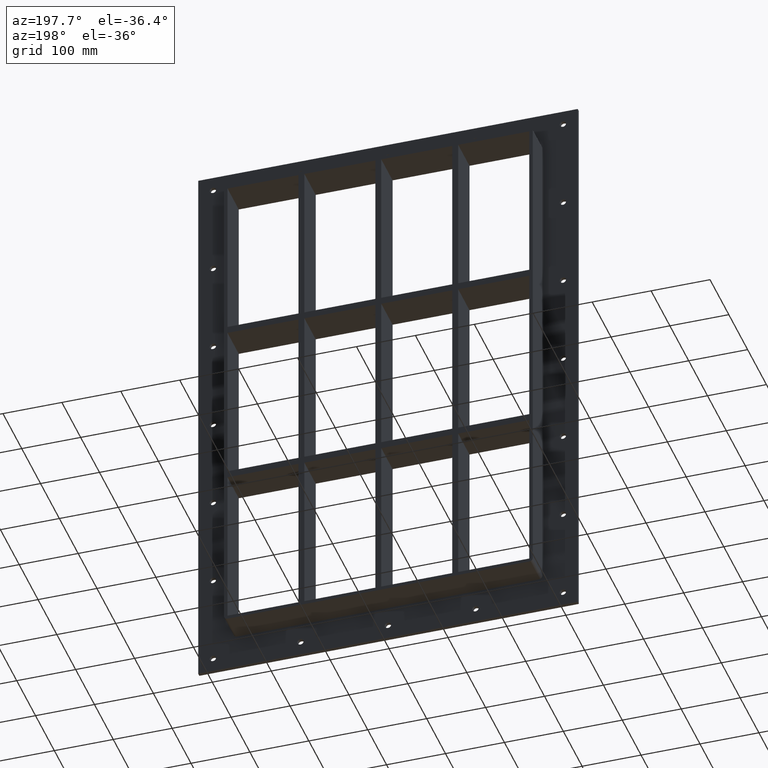
[diagram: clean part render]
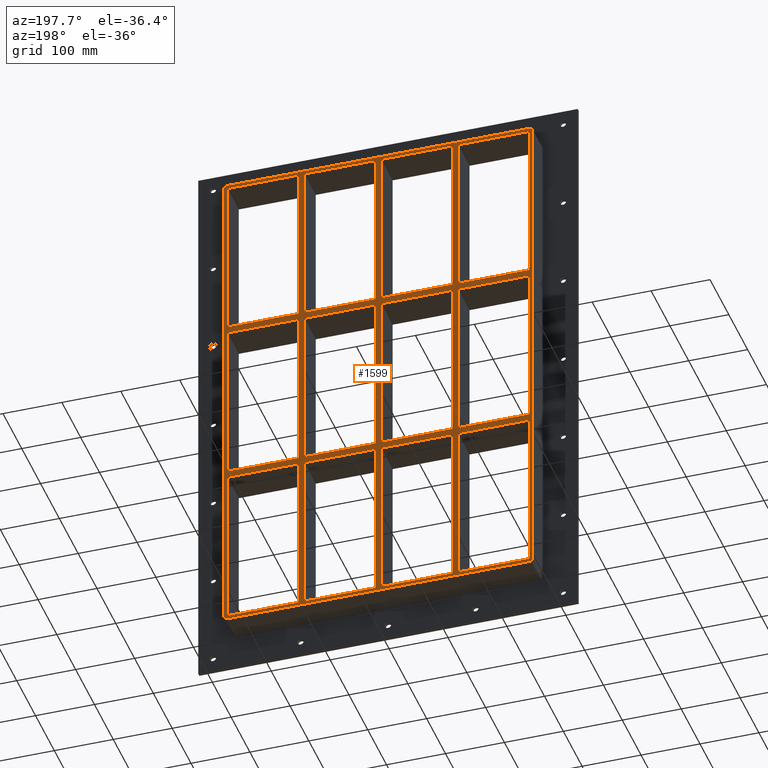
[diagram: same view with one face highlighted and labeled with its STEP entity id]
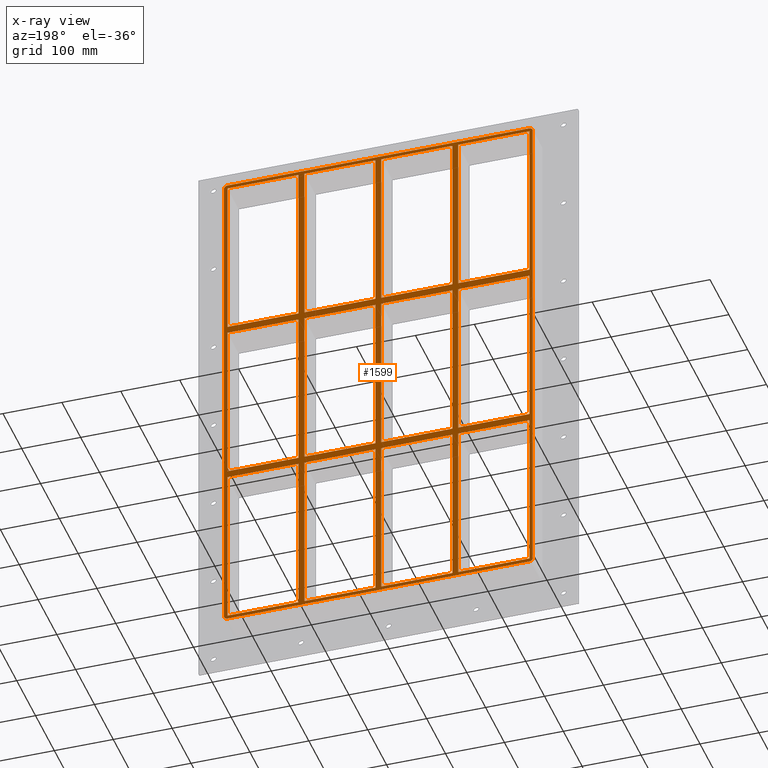
[diagram: x-ray of the same camera — body ghosted, the highlighted face saturated]
A machine part, auxiliary view. The second image highlights one B-rep face of the part: STEP entity #1599.
The next image is the same camera in x-ray: the body ghosted, the highlighted face saturated — about 0% of this face is hidden behind the body in this view.
In plain terms, the highlighted planar face has unit normal (0, 1, 0).
Its self-contained STEP definition (entity closure, byte-faithful):
#635=CARTESIAN_POINT('',(-135.50000000000213,57.0,138.99999999998983));
#636=VERTEX_POINT('',#635);
#651=CARTESIAN_POINT('',(-256.00000000000045,57.0,138.99999999998983));
#652=VERTEX_POINT('',#651);
#659=CARTESIAN_POINT('',(-135.5000000000021,57.0,138.9999999999898));
#660=DIRECTION('',(-1.0,0.0,0.0));
#661=VECTOR('',#660,120.49999999999835);
#662=LINE('',#659,#661);
#663=EDGE_CURVE('',#636,#652,#662,.T.);
#675=CARTESIAN_POINT('',(-5.000000000002132,57.0,138.99999999998983));
#676=VERTEX_POINT('',#675);
#691=CARTESIAN_POINT('',(-125.49999999999272,57.0,138.99999999998983));
#692=VERTEX_POINT('',#691);
#699=CARTESIAN_POINT('',(-5.00000000000216,57.0,138.9999999999898));
#700=DIRECTION('',(-1.0,0.0,0.0));
#701=VECTOR('',#700,120.49999999999056);
#702=LINE('',#699,#701);
#703=EDGE_CURVE('',#676,#692,#702,.T.);
#713=CARTESIAN_POINT('',(135.50000000000728,57.0,138.9999999999898));
#714=VERTEX_POINT('',#713);
#723=CARTESIAN_POINT('',(256.00000000000364,57.0,138.9999999999898));
#724=VERTEX_POINT('',#723);
#725=CARTESIAN_POINT('',(256.00000000000364,57.0,138.9999999999898));
#726=DIRECTION('',(-1.0,0.0,0.0));
#727=VECTOR('',#726,120.49999999999636);
#728=LINE('',#725,#727);
#729=EDGE_CURVE('',#724,#714,#728,.T.);
#755=CARTESIAN_POINT('',(125.4999999999979,57.0,138.9999999999898));
#756=VERTEX_POINT('',#755);
#771=CARTESIAN_POINT('',(5.000000000007283,57.0,138.9999999999898));
#772=VERTEX_POINT('',#771);
#779=CARTESIAN_POINT('',(125.4999999999979,57.0,138.9999999999898));
#780=DIRECTION('',(-1.0,0.0,0.0));
#781=VECTOR('',#780,120.49999999999062);
#782=LINE('',#779,#781);
#783=EDGE_CURVE('',#756,#772,#782,.T.);
#793=CARTESIAN_POINT('',(-135.50000000000213,57.0,151.0));
#794=VERTEX_POINT('',#793);
#803=CARTESIAN_POINT('',(-256.00000000000045,57.0,150.99999999999994));
#804=VERTEX_POINT('',#803);
#805=CARTESIAN_POINT('',(-256.00000000000045,57.0,150.99999999999994));
#806=DIRECTION('',(1.0,0.0,0.0));
#807=VECTOR('',#806,120.49999999999832);
#808=LINE('',#805,#807);
#809=EDGE_CURVE('',#804,#794,#808,.T.);
#835=CARTESIAN_POINT('',(135.50000000000728,57.0,151.00000000000017));
#836=VERTEX_POINT('',#835);
#851=CARTESIAN_POINT('',(256.00000000000017,57.0,151.00000000000023));
#852=VERTEX_POINT('',#851);
#859=CARTESIAN_POINT('',(135.50000000000728,57.0,151.00000000000017));
#860=DIRECTION('',(1.0,0.0,0.0));
#861=VECTOR('',#860,120.49999999999284);
#862=LINE('',#859,#861);
#863=EDGE_CURVE('',#836,#852,#862,.T.);
#873=CARTESIAN_POINT('',(-5.000000000002132,57.0,151.00000000000009));
#874=VERTEX_POINT('',#873);
#883=CARTESIAN_POINT('',(-125.49999999999272,57.0,151.0));
#884=VERTEX_POINT('',#883);
#885=CARTESIAN_POINT('',(-125.49999999999272,57.0,151.00000000000003));
#886=DIRECTION('',(1.0,0.0,0.0));
#887=VECTOR('',#886,120.49999999999056);
#888=LINE('',#885,#887);
#889=EDGE_CURVE('',#884,#874,#888,.T.);
#913=CARTESIAN_POINT('',(125.49999999999791,57.0,151.00000000000017));
#914=VERTEX_POINT('',#913);
#923=CARTESIAN_POINT('',(5.000000000007283,57.0,151.00000000000009));
#924=VERTEX_POINT('',#923);
#925=CARTESIAN_POINT('',(5.000000000007276,57.0,151.00000000000009));
#926=DIRECTION('',(1.0,0.0,0.0));
#927=VECTOR('',#926,120.49999999999062);
#928=LINE('',#925,#927);
#929=EDGE_CURVE('',#924,#914,#928,.T.);
#954=CARTESIAN_POINT('',(-256.0,57.0,429.00000000000006));
#955=VERTEX_POINT('',#954);
#956=CARTESIAN_POINT('',(-256.0,57.0,429.00000000000011));
#957=DIRECTION('',(0.0,0.0,-1.0));
#958=VECTOR('',#957,278.00000000000011);
#959=LINE('',#956,#958);
#960=EDGE_CURVE('',#955,#804,#959,.T.);
#985=CARTESIAN_POINT('',(256.00000000000017,57.0,-138.99999999999977));
#986=VERTEX_POINT('',#985);
#987=CARTESIAN_POINT('',(256.0,57.0,-138.99999999999974));
#988=DIRECTION('',(0.0,0.0,1.0));
#989=VECTOR('',#988,277.99999999998954);
#990=LINE('',#987,#989);
#991=EDGE_CURVE('',#986,#724,#990,.T.);
#1024=CARTESIAN_POINT('',(256.0,57.0,429.00000000000006));
#1025=VERTEX_POINT('',#1024);
#1032=CARTESIAN_POINT('',(256.0,57.0,151.00000000000023));
#1033=DIRECTION('',(0.0,0.0,1.0));
#1034=VECTOR('',#1033,277.99999999999983);
#1035=LINE('',#1032,#1034);
#1036=EDGE_CURVE('',#852,#1025,#1035,.T.);
#1055=CARTESIAN_POINT('',(125.49999999999784,57.0,429.00000000000006));
#1056=VERTEX_POINT('',#1055);
#1063=CARTESIAN_POINT('',(125.49999999999788,57.0,151.00000000000017));
#1064=DIRECTION('',(0.0,0.0,1.0));
#1065=VECTOR('',#1064,277.99999999999989);
#1066=LINE('',#1063,#1065);
#1067=EDGE_CURVE('',#914,#1056,#1066,.T.);
#1078=CARTESIAN_POINT('',(135.50000000000728,57.0,429.00000000000006));
#1079=VERTEX_POINT('',#1078);
#1080=CARTESIAN_POINT('',(135.50000000000728,57.0,429.00000000000006));
#1081=DIRECTION('',(0.0,0.0,-1.0));
#1082=VECTOR('',#1081,277.99999999999989);
#1083=LINE('',#1080,#1082);
#1084=EDGE_CURVE('',#1079,#836,#1083,.T.);
#1117=CARTESIAN_POINT('',(-5.000000000002167,57.0,429.00000000000006));
#1118=VERTEX_POINT('',#1117);
#1125=CARTESIAN_POINT('',(-5.000000000002121,57.0,151.00000000000006));
#1126=DIRECTION('',(0.0,0.0,1.0));
#1127=VECTOR('',#1126,278.0);
#1128=LINE('',#1125,#1127);
#1129=EDGE_CURVE('',#874,#1118,#1128,.T.);
#1140=CARTESIAN_POINT('',(5.000000000007283,57.0,429.00000000000006));
#1141=VERTEX_POINT('',#1140);
#1142=CARTESIAN_POINT('',(5.000000000007283,57.0,429.00000000000006));
#1143=DIRECTION('',(0.0,0.0,-1.0));
#1144=VECTOR('',#1143,278.0);
#1145=LINE('',#1142,#1144);
#1146=EDGE_CURVE('',#1141,#924,#1145,.T.);
#1179=CARTESIAN_POINT('',(-135.50000000000216,57.0,429.00000000000006));
#1180=VERTEX_POINT('',#1179);
#1187=CARTESIAN_POINT('',(-135.50000000000213,57.0,151.00000000000006));
#1188=DIRECTION('',(0.0,0.0,1.0));
#1189=VECTOR('',#1188,278.0);
#1190=LINE('',#1187,#1189);
#1191=EDGE_CURVE('',#794,#1180,#1190,.T.);
#1202=CARTESIAN_POINT('',(-135.50000000000207,57.0,-139.0));
#1203=VERTEX_POINT('',#1202);
#1204=CARTESIAN_POINT('',(-135.5000000000021,57.0,-139.0));
#1205=DIRECTION('',(0.0,0.0,1.0));
#1206=VECTOR('',#1205,277.99999999998983);
#1207=LINE('',#1204,#1206);
#1208=EDGE_CURVE('',#1203,#636,#1207,.T.);
#1233=CARTESIAN_POINT('',(-125.49999999999272,57.0,429.00000000000006));
#1234=VERTEX_POINT('',#1233);
#1235=CARTESIAN_POINT('',(-125.49999999999272,57.0,429.00000000000006));
#1236=DIRECTION('',(0.0,0.0,-1.0));
#1237=VECTOR('',#1236,278.00000000000006);
#1238=LINE('',#1235,#1237);
#1239=EDGE_CURVE('',#1234,#884,#1238,.T.);
#1258=CARTESIAN_POINT('',(0.0,57.0,0.0));
#1259=DIRECTION('',(0.0,1.0,0.0));
#1260=DIRECTION('',(0.0,0.0,1.0));
#1261=AXIS2_PLACEMENT_3D('',#1258,#1259,#1260);
#1262=PLANE('',#1261);
#1263=CARTESIAN_POINT('',(256.0,57.0,-435.00000000000006));
#1264=VERTEX_POINT('',#1263);
#1265=CARTESIAN_POINT('',(262.0,57.0,-429.0));
#1266=VERTEX_POINT('',#1265);
#1267=CARTESIAN_POINT('',(256.0,57.0,-429.00000000000006));
#1268=DIRECTION('',(0.0,-1.0,0.0));
#1269=DIRECTION('',(0.707106781186552,0.0,-0.707106781186543));
#1270=AXIS2_PLACEMENT_3D('',#1267,#1268,#1269);
#1271=CIRCLE('',#1270,6.000000000000001);
#1272=EDGE_CURVE('',#1264,#1266,#1271,.T.);
#1273=ORIENTED_EDGE('',*,*,#1272,.F.);
#1274=CARTESIAN_POINT('',(-256.0,57.0,-435.00000000000006));
#1275=VERTEX_POINT('',#1274);
#1276=CARTESIAN_POINT('',(256.0,57.0,-435.00000000000006));
#1277=DIRECTION('',(-1.0,0.0,0.0));
#1278=VECTOR('',#1277,512.0);
#1279=LINE('',#1276,#1278);
#1280=EDGE_CURVE('',#1264,#1275,#1279,.T.);
#1281=ORIENTED_EDGE('',*,*,#1280,.T.);
#1282=CARTESIAN_POINT('',(-262.0,57.0,-429.00000000000006));
#1283=VERTEX_POINT('',#1282);
#1284=CARTESIAN_POINT('',(-256.0,57.0,-429.00000000000006));
#1285=DIRECTION('',(0.0,-1.0,0.0));
#1286=DIRECTION('',(-0.707106781186552,0.0,-0.707106781186543));
#1287=AXIS2_PLACEMENT_3D('',#1284,#1285,#1286);
#1288=CIRCLE('',#1287,6.000000000000001);
#1289=EDGE_CURVE('',#1283,#1275,#1288,.T.);
#1290=ORIENTED_EDGE('',*,*,#1289,.F.);
#1291=CARTESIAN_POINT('',(-262.0,57.0,429.0));
#1292=VERTEX_POINT('',#1291);
#1293=CARTESIAN_POINT('',(-262.0,57.0,-429.00000000000006));
#1294=DIRECTION('',(0.0,0.0,1.0));
#1295=VECTOR('',#1294,858.0);
#1296=LINE('',#1293,#1295);
#1297=EDGE_CURVE('',#1283,#1292,#1296,.T.);
#1298=ORIENTED_EDGE('',*,*,#1297,.T.);
#1299=CARTESIAN_POINT('',(-256.0,57.0,435.00000000000006));
#1300=VERTEX_POINT('',#1299);
#1301=CARTESIAN_POINT('',(-256.0,57.0,429.00000000000006));
#1302=DIRECTION('',(0.0,-1.0,0.0));
#1303=DIRECTION('',(-0.707106781186552,0.0,0.707106781186543));
#1304=AXIS2_PLACEMENT_3D('',#1301,#1302,#1303);
#1305=CIRCLE('',#1304,6.000000000000001);
#1306=EDGE_CURVE('',#1300,#1292,#1305,.T.);
#1307=ORIENTED_EDGE('',*,*,#1306,.F.);
#1308=CARTESIAN_POINT('',(256.0,57.0,435.00000000000006));
#1309=VERTEX_POINT('',#1308);
#1310=CARTESIAN_POINT('',(-256.0,57.0,435.00000000000006));
#1311=DIRECTION('',(1.0,0.0,0.0));
#1312=VECTOR('',#1311,512.0);
#1313=LINE('',#1310,#1312);
#1314=EDGE_CURVE('',#1300,#1309,#1313,.T.);
#1315=ORIENTED_EDGE('',*,*,#1314,.T.);
#1316=CARTESIAN_POINT('',(262.0,57.0,429.00000000000006));
#1317=VERTEX_POINT('',#1316);
#1318=CARTESIAN_POINT('',(256.0,57.0,429.00000000000006));
#1319=DIRECTION('',(0.0,-1.0,0.0));
#1320=DIRECTION('',(0.707106781186552,0.0,0.707106781186543));
#1321=AXIS2_PLACEMENT_3D('',#1318,#1319,#1320);
#1322=CIRCLE('',#1321,6.000000000000001);
#1323=EDGE_CURVE('',#1317,#1309,#1322,.T.);
#1324=ORIENTED_EDGE('',*,*,#1323,.F.);
#1325=CARTESIAN_POINT('',(262.0,57.0,429.00000000000006));
#1326=DIRECTION('',(0.0,0.0,-1.0));
#1327=VECTOR('',#1326,858.0);
#1328=LINE('',#1325,#1327);
#1329=EDGE_CURVE('',#1317,#1266,#1328,.T.);
#1330=ORIENTED_EDGE('',*,*,#1329,.T.);
#1331=EDGE_LOOP('',(#1273,#1281,#1290,#1298,#1307,#1315,#1324,#1330));
#1332=FACE_OUTER_BOUND('',#1331,.T.);
#1333=CARTESIAN_POINT('',(-256.00000000000045,57.0,-139.00000000000006));
#1334=VERTEX_POINT('',#1333);
#1335=CARTESIAN_POINT('',(-256.0,57.0,138.99999999998985));
#1336=DIRECTION('',(0.0,0.0,-1.0));
#1337=VECTOR('',#1336,277.99999999998988);
#1338=LINE('',#1335,#1337);
#1339=EDGE_CURVE('',#652,#1334,#1338,.T.);
#1340=ORIENTED_EDGE('',*,*,#1339,.T.);
#1341=CARTESIAN_POINT('',(-256.00000000000045,57.0,-139.00000000000006));
#1342=DIRECTION('',(1.0,0.0,0.0));
#1343=VECTOR('',#1342,120.49999999999835);
#1344=LINE('',#1341,#1343);
#1345=EDGE_CURVE('',#1334,#1203,#1344,.T.);
#1346=ORIENTED_EDGE('',*,*,#1345,.T.);
#1347=ORIENTED_EDGE('',*,*,#1208,.T.);
#1348=ORIENTED_EDGE('',*,*,#663,.T.);
#1349=EDGE_LOOP('',(#1340,#1346,#1347,#1348));
#1350=FACE_BOUND('',#1349,.T.);
#1351=ORIENTED_EDGE('',*,*,#1036,.T.);
#1352=CARTESIAN_POINT('',(256.00000000000006,57.0,429.00000000000006));
#1353=DIRECTION('',(-1.0,0.0,0.0));
#1354=VECTOR('',#1353,120.49999999999278);
#1355=LINE('',#1352,#1354);
#1356=EDGE_CURVE('',#1025,#1079,#1355,.T.);
#1357=ORIENTED_EDGE('',*,*,#1356,.T.);
#1358=ORIENTED_EDGE('',*,*,#1084,.T.);
#1359=ORIENTED_EDGE('',*,*,#863,.T.);
#1360=EDGE_LOOP('',(#1351,#1357,#1358,#1359));
#1361=FACE_BOUND('',#1360,.T.);
#1362=ORIENTED_EDGE('',*,*,#1067,.T.);
#1363=CARTESIAN_POINT('',(125.49999999999784,57.0,429.00000000000006));
#1364=DIRECTION('',(-1.0,0.0,0.0));
#1365=VECTOR('',#1364,120.49999999999056);
#1366=LINE('',#1363,#1365);
#1367=EDGE_CURVE('',#1056,#1141,#1366,.T.);
#1368=ORIENTED_EDGE('',*,*,#1367,.T.);
#1369=ORIENTED_EDGE('',*,*,#1146,.T.);
#1370=ORIENTED_EDGE('',*,*,#929,.T.);
#1371=EDGE_LOOP('',(#1362,#1368,#1369,#1370));
#1372=FACE_BOUND('',#1371,.T.);
#1373=ORIENTED_EDGE('',*,*,#1129,.T.);
#1374=CARTESIAN_POINT('',(-5.00000000000216,57.0,429.00000000000006));
#1375=DIRECTION('',(-1.0,0.0,0.0));
#1376=VECTOR('',#1375,120.49999999999056);
#1377=LINE('',#1374,#1376);
#1378=EDGE_CURVE('',#1118,#1234,#1377,.T.);
#1379=ORIENTED_EDGE('',*,*,#1378,.T.);
#1380=ORIENTED_EDGE('',*,*,#1239,.T.);
#1381=ORIENTED_EDGE('',*,*,#889,.T.);
#1382=EDGE_LOOP('',(#1373,#1379,#1380,#1381));
#1383=FACE_BOUND('',#1382,.T.);
#1384=ORIENTED_EDGE('',*,*,#729,.T.);
#1385=CARTESIAN_POINT('',(135.50000000000728,57.0,-138.99999999999983));
#1386=VERTEX_POINT('',#1385);
#1387=CARTESIAN_POINT('',(135.50000000000728,57.0,138.99999999998983));
#1388=DIRECTION('',(0.0,0.0,-1.0));
#1389=VECTOR('',#1388,277.99999999998965);
#1390=LINE('',#1387,#1389);
#1391=EDGE_CURVE('',#714,#1386,#1390,.T.);
#1392=ORIENTED_EDGE('',*,*,#1391,.T.);
#1393=CARTESIAN_POINT('',(135.50000000000728,57.0,-138.99999999999983));
#1394=DIRECTION('',(1.0,0.0,0.0));
#1395=VECTOR('',#1394,120.49999999999284);
#1396=LINE('',#1393,#1395);
#1397=EDGE_CURVE('',#1386,#986,#1396,.T.);
#1398=ORIENTED_EDGE('',*,*,#1397,.T.);
#1399=ORIENTED_EDGE('',*,*,#991,.T.);
#1400=EDGE_LOOP('',(#1384,#1392,#1398,#1399));
#1401=FACE_BOUND('',#1400,.T.);
#1402=ORIENTED_EDGE('',*,*,#783,.T.);
#1403=CARTESIAN_POINT('',(5.000000000007283,57.0,-138.99999999999991));
#1404=VERTEX_POINT('',#1403);
#1405=CARTESIAN_POINT('',(5.000000000007283,57.0,138.99999999998983));
#1406=DIRECTION('',(0.0,0.0,-1.0));
#1407=VECTOR('',#1406,277.99999999998977);
#1408=LINE('',#1405,#1407);
#1409=EDGE_CURVE('',#772,#1404,#1408,.T.);
#1410=ORIENTED_EDGE('',*,*,#1409,.T.);
#1411=CARTESIAN_POINT('',(125.49999999999793,57.0,-138.99999999999983));
#1412=VERTEX_POINT('',#1411);
#1413=CARTESIAN_POINT('',(5.000000000007276,57.0,-138.99999999999991));
#1414=DIRECTION('',(1.0,0.0,0.0));
#1415=VECTOR('',#1414,120.49999999999062);
#1416=LINE('',#1413,#1415);
#1417=EDGE_CURVE('',#1404,#1412,#1416,.T.);
#1418=ORIENTED_EDGE('',*,*,#1417,.T.);
#1419=CARTESIAN_POINT('',(125.49999999999794,57.0,-138.99999999999983));
#1420=DIRECTION('',(0.0,0.0,1.0));
#1421=VECTOR('',#1420,277.99999999998965);
#1422=LINE('',#1419,#1421);
#1423=EDGE_CURVE('',#1412,#756,#1422,.T.);
#1424=ORIENTED_EDGE('',*,*,#1423,.T.);
#1425=EDGE_LOOP('',(#1402,#1410,#1418,#1424));
#1426=FACE_BOUND('',#1425,.T.);
#1427=ORIENTED_EDGE('',*,*,#703,.T.);
#1428=CARTESIAN_POINT('',(-125.49999999999272,57.0,-139.0));
#1429=VERTEX_POINT('',#1428);
#1430=CARTESIAN_POINT('',(-125.49999999999272,57.0,138.99999999998983));
#1431=DIRECTION('',(0.0,0.0,-1.0));
#1432=VECTOR('',#1431,277.99999999998977);
#1433=LINE('',#1430,#1432);
#1434=EDGE_CURVE('',#692,#1429,#1433,.T.);
#1435=ORIENTED_EDGE('',*,*,#1434,.T.);
#1436=CARTESIAN_POINT('',(-5.000000000002073,57.0,-138.99999999999991));
#1437=VERTEX_POINT('',#1436);
#1438=CARTESIAN_POINT('',(-125.49999999999272,57.0,-138.99999999999997));
#1439=DIRECTION('',(1.0,0.0,0.0));
#1440=VECTOR('',#1439,120.49999999999065);
#1441=LINE('',#1438,#1440);
#1442=EDGE_CURVE('',#1429,#1437,#1441,.T.);
#1443=ORIENTED_EDGE('',*,*,#1442,.T.);
#1444=CARTESIAN_POINT('',(-5.000000000002073,57.0,-138.99999999999994));
#1445=DIRECTION('',(0.0,0.0,1.0));
#1446=VECTOR('',#1445,277.99999999998977);
#1447=LINE('',#1444,#1446);
#1448=EDGE_CURVE('',#1437,#676,#1447,.T.);
#1449=ORIENTED_EDGE('',*,*,#1448,.T.);
#1450=EDGE_LOOP('',(#1427,#1435,#1443,#1449));
#1451=FACE_BOUND('',#1450,.T.);
#1452=CARTESIAN_POINT('',(-256.00000000000045,57.0,-151.00000000001017));
#1453=VERTEX_POINT('',#1452);
#1454=CARTESIAN_POINT('',(-256.0,57.0,-429.00000000000006));
#1455=VERTEX_POINT('',#1454);
#1456=CARTESIAN_POINT('',(-256.0,57.0,-151.00000000001017));
#1457=DIRECTION('',(0.0,0.0,-1.0));
#1458=VECTOR('',#1457,277.99999999998988);
#1459=LINE('',#1456,#1458);
#1460=EDGE_CURVE('',#1453,#1455,#1459,.T.);
#1461=ORIENTED_EDGE('',*,*,#1460,.T.);
#1462=CARTESIAN_POINT('',(-135.50000000000205,57.0,-429.00000000000006));
#1463=VERTEX_POINT('',#1462);
#1464=CARTESIAN_POINT('',(-256.00000000000006,57.0,-429.00000000000006));
#1465=DIRECTION('',(1.0,0.0,0.0));
#1466=VECTOR('',#1465,120.49999999999801);
#1467=LINE('',#1464,#1466);
#1468=EDGE_CURVE('',#1455,#1463,#1467,.T.);
#1469=ORIENTED_EDGE('',*,*,#1468,.T.);
#1470=CARTESIAN_POINT('',(-135.5000000000021,57.0,-151.00000000001017));
#1471=VERTEX_POINT('',#1470);
#1472=CARTESIAN_POINT('',(-135.50000000000205,57.0,-429.00000000000006));
#1473=DIRECTION('',(0.0,0.0,1.0));
#1474=VECTOR('',#1473,277.99999999998988);
#1475=LINE('',#1472,#1474);
#1476=EDGE_CURVE('',#1463,#1471,#1475,.T.);
#1477=ORIENTED_EDGE('',*,*,#1476,.T.);
#1478=CARTESIAN_POINT('',(-135.5000000000021,57.0,-151.0000000000102));
#1479=DIRECTION('',(-1.0,0.0,0.0));
#1480=VECTOR('',#1479,120.49999999999835);
#1481=LINE('',#1478,#1480);
#1482=EDGE_CURVE('',#1471,#1453,#1481,.T.);
#1483=ORIENTED_EDGE('',*,*,#1482,.T.);
#1484=EDGE_LOOP('',(#1461,#1469,#1477,#1483));
#1485=FACE_BOUND('',#1484,.T.);
#1486=CARTESIAN_POINT('',(-5.000000000002025,57.0,-429.00000000000006));
#1487=VERTEX_POINT('',#1486);
#1488=CARTESIAN_POINT('',(-5.00000000000207,57.0,-151.00000000001017));
#1489=VERTEX_POINT('',#1488);
#1490=CARTESIAN_POINT('',(-5.000000000002025,57.0,-429.00000000000006));
#1491=DIRECTION('',(0.0,0.0,1.0));
#1492=VECTOR('',#1491,277.99999999998988);
#1493=LINE('',#1490,#1492);
#1494=EDGE_CURVE('',#1487,#1489,#1493,.T.);
#1495=ORIENTED_EDGE('',*,*,#1494,.T.);
#1496=CARTESIAN_POINT('',(-125.49999999999272,57.0,-151.00000000001017));
#1497=VERTEX_POINT('',#1496);
#1498=CARTESIAN_POINT('',(-5.000000000002046,57.0,-151.0000000000102));
#1499=DIRECTION('',(-1.0,0.0,0.0));
#1500=VECTOR('',#1499,120.49999999999068);
#1501=LINE('',#1498,#1500);
#1502=EDGE_CURVE('',#1489,#1497,#1501,.T.);
#1503=ORIENTED_EDGE('',*,*,#1502,.T.);
#1504=CARTESIAN_POINT('',(-125.49999999999272,57.0,-428.99999999998658));
#1505=VERTEX_POINT('',#1504);
#1506=CARTESIAN_POINT('',(-125.49999999999272,57.0,-151.00000000001017));
#1507=DIRECTION('',(0.0,0.0,-1.0));
#1508=VECTOR('',#1507,277.99999999997635);
#1509=LINE('',#1506,#1508);
#1510=EDGE_CURVE('',#1497,#1505,#1509,.T.);
#1511=ORIENTED_EDGE('',*,*,#1510,.T.);
#1512=CARTESIAN_POINT('',(-125.49999999999272,57.0,-429.00000000000006));
#1513=DIRECTION('',(1.0,0.0,0.0));
#1514=VECTOR('',#1513,120.49999999999068);
#1515=LINE('',#1512,#1514);
#1516=EDGE_CURVE('',#1505,#1487,#1515,.T.);
#1517=ORIENTED_EDGE('',*,*,#1516,.T.);
#1518=EDGE_LOOP('',(#1495,#1503,#1511,#1517));
#1519=FACE_BOUND('',#1518,.T.);
#1520=CARTESIAN_POINT('',(125.49999999999798,57.0,-429.00000000000006));
#1521=VERTEX_POINT('',#1520);
#1522=CARTESIAN_POINT('',(125.49999999999793,57.0,-151.00000000001017));
#1523=VERTEX_POINT('',#1522);
#1524=CARTESIAN_POINT('',(125.49999999999798,57.0,-429.00000000000006));
#1525=DIRECTION('',(0.0,0.0,1.0));
#1526=VECTOR('',#1525,277.99999999998988);
#1527=LINE('',#1524,#1526);
#1528=EDGE_CURVE('',#1521,#1523,#1527,.T.);
#1529=ORIENTED_EDGE('',*,*,#1528,.T.);
#1530=CARTESIAN_POINT('',(5.000000000007283,57.0,-151.00000000001017));
#1531=VERTEX_POINT('',#1530);
#1532=CARTESIAN_POINT('',(125.49999999999793,57.0,-151.0000000000102));
#1533=DIRECTION('',(-1.0,0.0,0.0));
#1534=VECTOR('',#1533,120.49999999999065);
#1535=LINE('',#1532,#1534);
#1536=EDGE_CURVE('',#1523,#1531,#1535,.T.);
#1537=ORIENTED_EDGE('',*,*,#1536,.T.);
#1538=CARTESIAN_POINT('',(5.000000000007283,57.0,-428.99999999998658));
#1539=VERTEX_POINT('',#1538);
#1540=CARTESIAN_POINT('',(5.000000000007283,57.0,-151.00000000001017));
#1541=DIRECTION('',(0.0,0.0,-1.0));
#1542=VECTOR('',#1541,277.99999999997635);
#1543=LINE('',#1540,#1542);
#1544=EDGE_CURVE('',#1531,#1539,#1543,.T.);
#1545=ORIENTED_EDGE('',*,*,#1544,.T.);
#1546=CARTESIAN_POINT('',(5.000000000007276,57.0,-429.00000000000006));
#1547=DIRECTION('',(1.0,0.0,0.0));
#1548=VECTOR('',#1547,120.49999999999071);
#1549=LINE('',#1546,#1548);
#1550=EDGE_CURVE('',#1539,#1521,#1549,.T.);
#1551=ORIENTED_EDGE('',*,*,#1550,.T.);
#1552=EDGE_LOOP('',(#1529,#1537,#1545,#1551));
#1553=FACE_BOUND('',#1552,.T.);
#1554=ORIENTED_EDGE('',*,*,#809,.T.);
#1555=ORIENTED_EDGE('',*,*,#1191,.T.);
#1556=CARTESIAN_POINT('',(-135.50000000000216,57.0,429.00000000000006));
#1557=DIRECTION('',(-1.0,0.0,0.0));
#1558=VECTOR('',#1557,120.49999999999784);
#1559=LINE('',#1556,#1558);
#1560=EDGE_CURVE('',#1180,#955,#1559,.T.);
#1561=ORIENTED_EDGE('',*,*,#1560,.T.);
#1562=ORIENTED_EDGE('',*,*,#960,.T.);
#1563=EDGE_LOOP('',(#1554,#1555,#1561,#1562));
#1564=FACE_BOUND('',#1563,.T.);
#1565=CARTESIAN_POINT('',(135.50000000000728,57.0,-428.99999999998658));
#1566=VERTEX_POINT('',#1565);
#1567=CARTESIAN_POINT('',(256.0,57.0,-429.00000000000006));
#1568=VERTEX_POINT('',#1567);
#1569=CARTESIAN_POINT('',(135.50000000000728,57.0,-429.00000000000006));
#1570=DIRECTION('',(1.0,0.0,0.0));
#1571=VECTOR('',#1570,120.49999999999272);
#1572=LINE('',#1569,#1571);
#1573=EDGE_CURVE('',#1566,#1568,#1572,.T.);
#1574=ORIENTED_EDGE('',*,*,#1573,.T.);
#1575=CARTESIAN_POINT('',(256.00000000000364,57.0,-151.0000000000102));
#1576=VERTEX_POINT('',#1575);
#1577=CARTESIAN_POINT('',(256.0,57.0,-429.00000000000011));
#1578=DIRECTION('',(0.0,0.0,1.0));
#1579=VECTOR('',#1578,277.99999999998988);
#1580=LINE('',#1577,#1579);
#1581=EDGE_CURVE('',#1568,#1576,#1580,.T.);
#1582=ORIENTED_EDGE('',*,*,#1581,.T.);
#1583=CARTESIAN_POINT('',(135.50000000000728,57.0,-151.00000000001017));
#1584=VERTEX_POINT('',#1583);
#1585=CARTESIAN_POINT('',(256.00000000000364,57.0,-151.0000000000102));
#1586=DIRECTION('',(-1.0,0.0,0.0));
#1587=VECTOR('',#1586,120.49999999999636);
#1588=LINE('',#1585,#1587);
#1589=EDGE_CURVE('',#1576,#1584,#1588,.T.);
#1590=ORIENTED_EDGE('',*,*,#1589,.T.);
#1591=CARTESIAN_POINT('',(135.50000000000728,57.0,-151.00000000001017));
#1592=DIRECTION('',(0.0,0.0,-1.0));
#1593=VECTOR('',#1592,277.99999999997635);
#1594=LINE('',#1591,#1593);
#1595=EDGE_CURVE('',#1584,#1566,#1594,.T.);
#1596=ORIENTED_EDGE('',*,*,#1595,.T.);
#1597=EDGE_LOOP('',(#1574,#1582,#1590,#1596));
#1598=FACE_BOUND('',#1597,.T.);
#1599=ADVANCED_FACE('',(#1332,#1350,#1361,#1372,#1383,#1401,#1426,#1451,#1485,#1519,#1553,#1564,#1598),#1262,.T.);